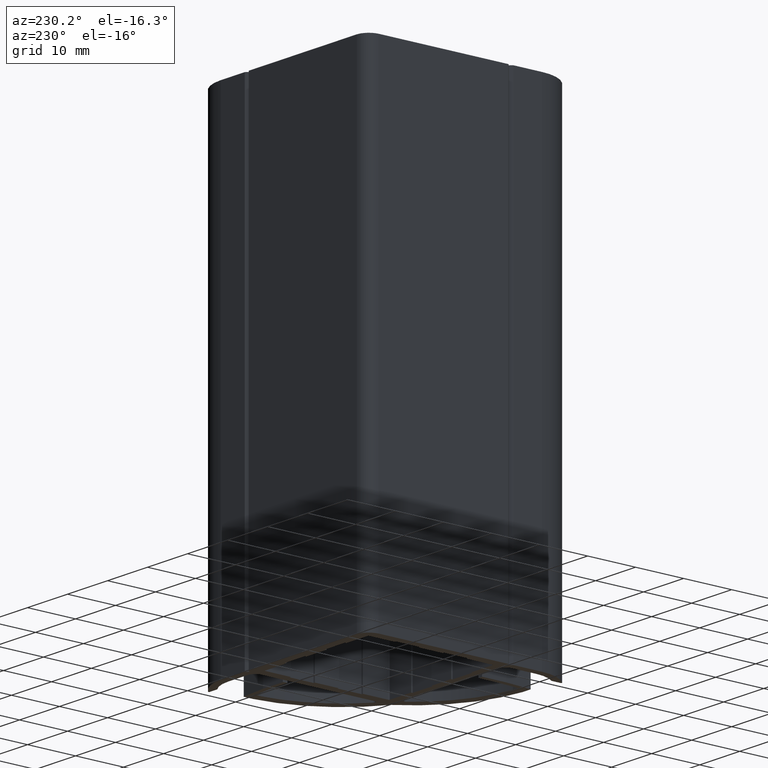
[diagram: clean part render]
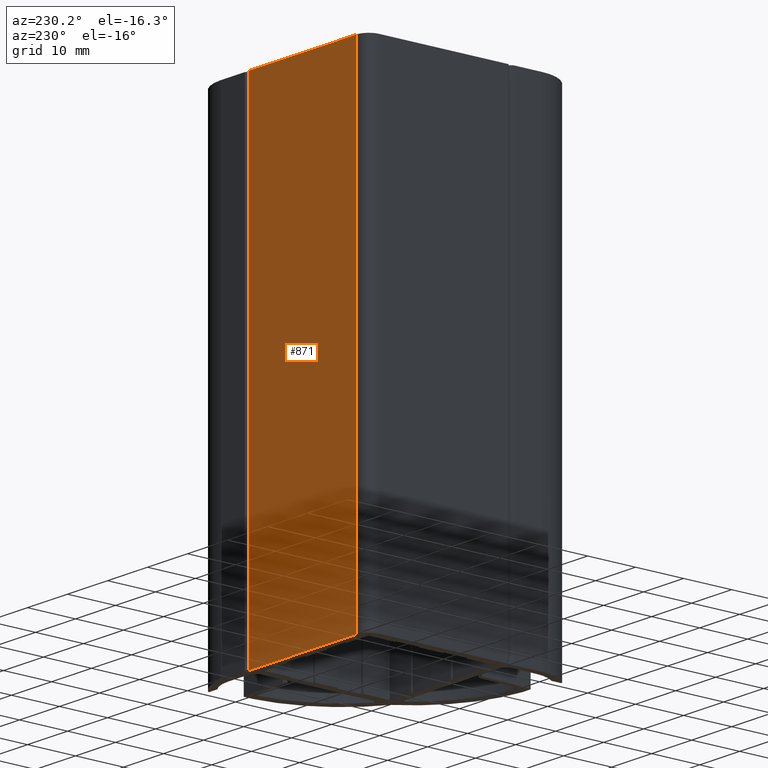
[diagram: same view with one face highlighted and labeled with its STEP entity id]
A machine part, auxiliary view. The second image highlights one B-rep face of the part: STEP entity #871.
In plain terms, the highlighted planar face has unit normal (0, 1, 0).
Its self-contained STEP definition (entity closure, byte-faithful):
#815=CARTESIAN_POINT('',(29.499472180257953,15.999736090129403,-100.0));
#816=VERTEX_POINT('',#815);
#823=CARTESIAN_POINT('',(29.499472180257953,15.999736090129403,0.0));
#824=VERTEX_POINT('',#823);
#825=CARTESIAN_POINT('',(29.499472180257953,15.999736090129403,-100.0));
#826=DIRECTION('',(0.0,0.0,1.0));
#827=VECTOR('',#826,100.0);
#828=LINE('',#825,#827);
#829=EDGE_CURVE('',#816,#824,#828,.T.);
#841=CARTESIAN_POINT('',(29.499472180257953,15.999736090129403,-100.0));
#842=DIRECTION('',(0.0,1.0,0.0));
#843=DIRECTION('',(-1.0,0.0,0.0));
#844=AXIS2_PLACEMENT_3D('',#841,#842,#843);
#845=PLANE('',#844);
#846=CARTESIAN_POINT('',(2.499999999999091,15.999736090129403,-100.0));
#847=VERTEX_POINT('',#846);
#848=CARTESIAN_POINT('',(29.499472180257953,15.999736090129403,-100.0));
#849=DIRECTION('',(-1.0,0.0,0.0));
#850=VECTOR('',#849,26.999472180258863);
#851=LINE('',#848,#850);
#852=EDGE_CURVE('',#816,#847,#851,.T.);
#853=ORIENTED_EDGE('',*,*,#852,.T.);
#854=CARTESIAN_POINT('',(2.499999999999091,15.999736090129403,0.0));
#855=VERTEX_POINT('',#854);
#856=CARTESIAN_POINT('',(2.499999999999091,15.999736090129403,-100.0));
#857=DIRECTION('',(0.0,0.0,1.0));
#858=VECTOR('',#857,100.0);
#859=LINE('',#856,#858);
#860=EDGE_CURVE('',#847,#855,#859,.T.);
#861=ORIENTED_EDGE('',*,*,#860,.T.);
#862=CARTESIAN_POINT('',(29.499472180257953,15.999736090129403,0.0));
#863=DIRECTION('',(-1.0,0.0,0.0));
#864=VECTOR('',#863,26.999472180258863);
#865=LINE('',#862,#864);
#866=EDGE_CURVE('',#824,#855,#865,.T.);
#867=ORIENTED_EDGE('',*,*,#866,.F.);
#868=ORIENTED_EDGE('',*,*,#829,.F.);
#869=EDGE_LOOP('',(#853,#861,#867,#868));
#870=FACE_OUTER_BOUND('',#869,.T.);
#871=ADVANCED_FACE('',(#870),#845,.T.);